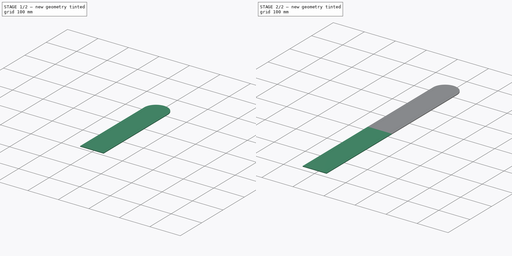
[diagram: build sequence overview — one tinted view per stage of 2, left to right]
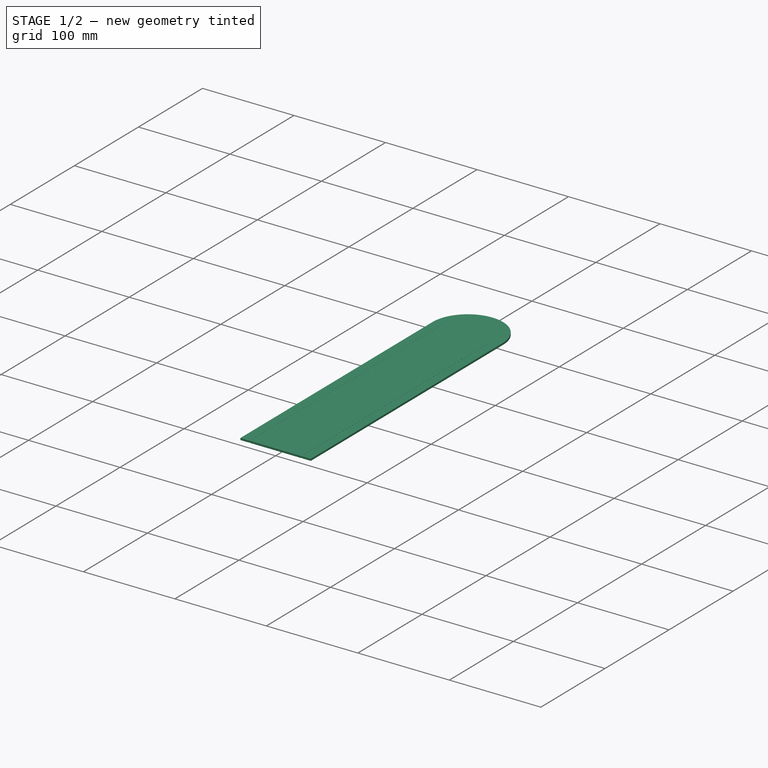
[diagram: stage 1 of 2 — iso view after this stage's code; geometry added in this stage tinted green]
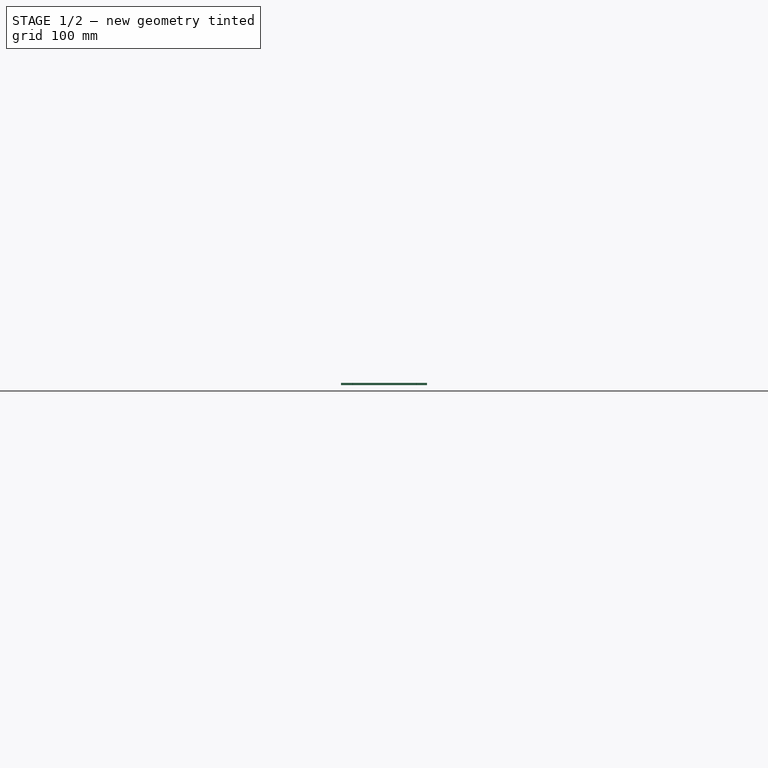
[diagram: stage 1 of 2 — front view after this stage's code; geometry added in this stage tinted green]
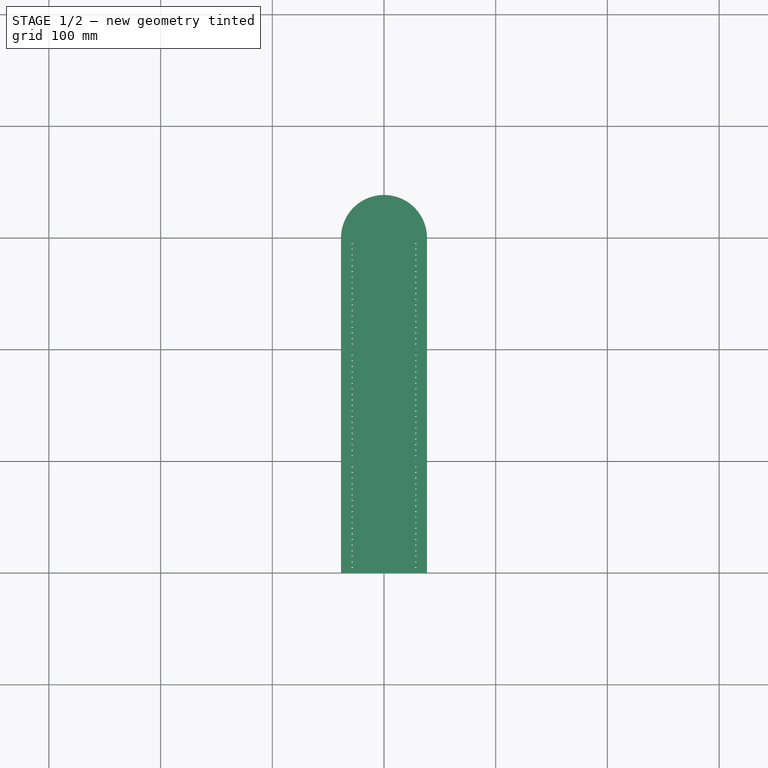
[diagram: stage 1 of 2 — top view after this stage's code; geometry added in this stage tinted green]
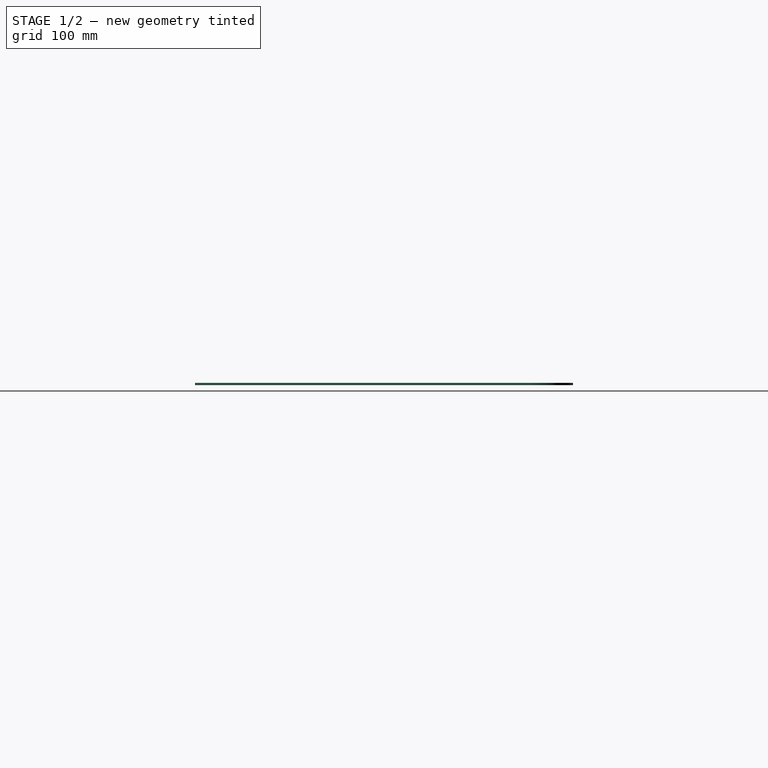
[diagram: stage 1 of 2 — right view after this stage's code; geometry added in this stage tinted green]
FCSTD DOCUMENT  (FreeCAD 0.18R16146 (Git))
Label: Pourtour_coupe
License: All rights reserved
LicenseURL: http://en.wikipedia.org/wiki/All_rights_reserved
objects: Sketcher::SketchObject×2, PartDesign::Pad×2, PartDesign::Mirrored×2, PartDesign::Body×2, Drawing::FeatureViewPart×2, Drawing::FeaturePage×1
note: 10 computed .brp shape members not serialized (recipe doc carries the construction recipe); baked Part::Feature solids carry a one-line shape summary decoded from their .brp

FEATURE [Sketcher::SketchObject] Sketch001
  MapMode = 5
  Support = -> [XY_Plane002]
  sketch-geometry (70):
    g0: LineSegment [constr] StartX=0 StartY=0 StartZ=0 EndX=38.5 EndY=0 EndZ=0
    g1: LineSegment [constr] StartX=38.5 StartY=600 StartZ=0 EndX=0 EndY=600 EndZ=0
    g2: ArcOfCircle CenterX=0 CenterY=600 CenterZ=0 NormalX=0 NormalY=0 NormalZ=1 AngleXU=0 Radius=38.5 StartAngle=0 EndAngle=1.5708
    g3: LineSegment [constr] StartX=28.5 StartY=600 StartZ=0 EndX=28.5 EndY=0 EndZ=0
    g4: Circle CenterX=28.5 CenterY=305 CenterZ=0 NormalX=0 NormalY=0 NormalZ=1 AngleXU=0 Radius=0.5
    g5: Circle CenterX=28.5 CenterY=310 CenterZ=0 NormalX=0 NormalY=0 NormalZ=1 AngleXU=0 Radius=0.5
    g6: Circle CenterX=28.5 CenterY=315 CenterZ=0 NormalX=0 NormalY=0 NormalZ=1 AngleXU=0 Radius=0.5
    g7: Circle CenterX=28.5 CenterY=320 CenterZ=0 NormalX=0 NormalY=0 NormalZ=1 AngleXU=0 Radius=0.5
    g8: Circle CenterX=28.5 CenterY=325 CenterZ=0 NormalX=0 NormalY=0 NormalZ=1 AngleXU=0 Radius=0.5
    g9: Circle CenterX=28.5 CenterY=330 CenterZ=0 NormalX=0 NormalY=0 NormalZ=1 AngleXU=0 Radius=0.5
    g10: Circle CenterX=28.5 CenterY=335 CenterZ=0 NormalX=0 NormalY=0 NormalZ=1 AngleXU=0 Radius=0.5
    g11: Circle CenterX=28.5 CenterY=340 CenterZ=0 NormalX=0 NormalY=0 NormalZ=1 AngleXU=0 Radius=0.5
    g12: Circle CenterX=28.5 CenterY=345 CenterZ=0 NormalX=0 NormalY=0 NormalZ=1 AngleXU=0 Radius=0.5
    g13: Circle CenterX=28.5 CenterY=350 CenterZ=0 NormalX=0 NormalY=0 NormalZ=1 AngleXU=0 Radius=0.5
    g14: Circle CenterX=28.5 CenterY=355 CenterZ=0 NormalX=0 NormalY=0 NormalZ=1 AngleXU=0 Radius=0.5
    g15: Circle CenterX=28.5 CenterY=360 CenterZ=0 NormalX=0 NormalY=0 NormalZ=1 AngleXU=0 Radius=0.5
    g16: Circle CenterX=28.5 CenterY=365 CenterZ=0 NormalX=0 NormalY=0 NormalZ=1 AngleXU=0 Radius=0.5
    g17: Circle CenterX=28.5 CenterY=370 CenterZ=0 NormalX=0 NormalY=0 NormalZ=1 AngleXU=0 Radius=0.5
    g18: Circle CenterX=28.5 CenterY=375 CenterZ=0 NormalX=0 NormalY=0 NormalZ=1 AngleXU=0 Radius=0.5
    g19: Circle CenterX=28.5 CenterY=380 CenterZ=0 NormalX=0 NormalY=0 NormalZ=1 AngleXU=0 Radius=0.5
    g20: Circle CenterX=28.5 CenterY=385 CenterZ=0 NormalX=0 NormalY=0 NormalZ=1 AngleXU=0 Radius=0.5
    g21: Circle CenterX=28.5 CenterY=390 CenterZ=0 NormalX=0 NormalY=0 NormalZ=1 AngleXU=0 Radius=0.5
    g22: Circle CenterX=28.5 CenterY=395 CenterZ=0 NormalX=0 NormalY=0 NormalZ=1 AngleXU=0 Radius=0.5
    g23: Circle CenterX=28.5 CenterY=400 CenterZ=0 NormalX=0 NormalY=0 NormalZ=1 AngleXU=0 Radius=0.5
    g24: Circle CenterX=28.5 CenterY=405 CenterZ=0 NormalX=0 NormalY=0 NormalZ=1 AngleXU=0 Radius=0.5
    g25: Circle CenterX=28.5 CenterY=410 CenterZ=0 NormalX=0 NormalY=0 NormalZ=1 AngleXU=0 Radius=0.5
    g26: Circle CenterX=28.5 CenterY=415 CenterZ=0 NormalX=0 NormalY=0 NormalZ=1 AngleXU=0 Radius=0.5
    g27: Circle CenterX=28.5 CenterY=420 CenterZ=0 NormalX=0 NormalY=0 NormalZ=1 AngleXU=0 Radius=0.5
    g28: Circle CenterX=28.5 CenterY=425 CenterZ=0 NormalX=0 NormalY=0 NormalZ=1 AngleXU=0 Radius=0.5
    g29: Circle CenterX=28.5 CenterY=430 CenterZ=0 NormalX=0 NormalY=0 NormalZ=1 AngleXU=0 Radius=0.5
    g30: Circle CenterX=28.5 CenterY=435 CenterZ=0 NormalX=0 NormalY=0 NormalZ=1 AngleXU=0 Radius=0.5
    g31: Circle CenterX=28.5 CenterY=440 CenterZ=0 NormalX=0 NormalY=0 NormalZ=1 AngleXU=0 Radius=0.5
    g32: Circle CenterX=28.5 CenterY=445 CenterZ=0 NormalX=0 NormalY=0 NormalZ=1 AngleXU=0 Radius=0.5
    g33: Circle CenterX=28.5 CenterY=450 CenterZ=0 NormalX=0 NormalY=0 NormalZ=1 AngleXU=0 Radius=0.5
    g34: Circle CenterX=28.5 CenterY=455 CenterZ=0 NormalX=0 NormalY=0 NormalZ=1 AngleXU=0 Radius=0.5
    g35: Circle CenterX=28.5 CenterY=460 CenterZ=0 NormalX=0 NormalY=0 NormalZ=1 AngleXU=0 Radius=0.5
    g36: Circle CenterX=28.5 CenterY=465 CenterZ=0 NormalX=0 NormalY=0 NormalZ=1 AngleXU=0 Radius=0.5
    g37: Circle CenterX=28.5 CenterY=470 CenterZ=0 NormalX=0 NormalY=0 NormalZ=1 AngleXU=0 Radius=0.5
    g38: Circle CenterX=28.5 CenterY=475 CenterZ=0 NormalX=0 NormalY=0 NormalZ=1 AngleXU=0 Radius=0.5
    g39: Circle CenterX=28.5 CenterY=480 CenterZ=0 NormalX=0 NormalY=0 NormalZ=1 AngleXU=0 Radius=0.5
    g40: Circle CenterX=28.5 CenterY=485 CenterZ=0 NormalX=0 NormalY=0 NormalZ=1 AngleXU=0 Radius=0.5
    g41: Circle CenterX=28.5 CenterY=490 CenterZ=0 NormalX=0 NormalY=0 NormalZ=1 AngleXU=0 Radius=0.5
    g42: Circle CenterX=28.5 CenterY=495 CenterZ=0 NormalX=0 NormalY=0 NormalZ=1 AngleXU=0 Radius=0.5
    g43: Circle CenterX=28.5 CenterY=500 CenterZ=0 NormalX=0 NormalY=0 NormalZ=1 AngleXU=0 Radius=0.5
    g44: Circle CenterX=28.5 CenterY=505 CenterZ=0 NormalX=0 NormalY=0 NormalZ=1 AngleXU=0 Radius=0.5
    g45: Circle CenterX=28.5 CenterY=510 CenterZ=0 NormalX=0 NormalY=0 NormalZ=1 AngleXU=0 Radius=0.5
    g46: Circle CenterX=28.5 CenterY=515 CenterZ=0 NormalX=0 NormalY=0 NormalZ=1 AngleXU=0 Radius=0.5
    g47: Circle CenterX=28.5 CenterY=520 CenterZ=0 NormalX=0 NormalY=0 NormalZ=1 AngleXU=0 Radius=0.5
    g48: Circle CenterX=28.5 CenterY=525 CenterZ=0 NormalX=0 NormalY=0 NormalZ=1 AngleXU=0 Radius=0.5
    g49: Circle CenterX=28.5 CenterY=530 CenterZ=0 NormalX=0 NormalY=0 NormalZ=1 AngleXU=0 Radius=0.5
    g50: Circle CenterX=28.5 CenterY=535 CenterZ=0 NormalX=0 NormalY=0 NormalZ=1 AngleXU=0 Radius=0.5
    g51: Circle CenterX=28.5 CenterY=540 CenterZ=0 NormalX=0 NormalY=0 NormalZ=1 AngleXU=0 Radius=0.5
    g52: Circle CenterX=28.5 CenterY=545 CenterZ=0 NormalX=0 NormalY=0 NormalZ=1 AngleXU=0 Radius=0.5
    g53: Circle CenterX=28.5 CenterY=550 CenterZ=0 NormalX=0 NormalY=0 NormalZ=1 AngleXU=0 Radius=0.5
    g54: Circle CenterX=28.5 CenterY=555 CenterZ=0 NormalX=0 NormalY=0 NormalZ=1 AngleXU=0 Radius=0.5
    g55: Circle CenterX=28.5 CenterY=560 CenterZ=0 NormalX=0 NormalY=0 NormalZ=1 AngleXU=0 Radius=0.5
    g56: Circle CenterX=28.5 CenterY=565 CenterZ=0 NormalX=0 NormalY=0 NormalZ=1 AngleXU=0 Radius=0.5
    g57: Circle CenterX=28.5 CenterY=570 CenterZ=0 NormalX=0 NormalY=0 NormalZ=1 AngleXU=0 Radius=0.5
    g58: Circle CenterX=28.5 CenterY=575 CenterZ=0 NormalX=0 NormalY=0 NormalZ=1 AngleXU=0 Radius=0.5
    g59: Circle CenterX=28.5 CenterY=580 CenterZ=0 NormalX=0 NormalY=0 NormalZ=1 AngleXU=0 Radius=0.5
    g60: Circle CenterX=28.5 CenterY=585 CenterZ=0 NormalX=0 NormalY=0 NormalZ=1 AngleXU=0 Radius=0.5
    g61: Circle CenterX=28.5 CenterY=590 CenterZ=0 NormalX=0 NormalY=0 NormalZ=1 AngleXU=0 Radius=0.5
    g62: Circle CenterX=28.5 CenterY=595 CenterZ=0 NormalX=0 NormalY=0 NormalZ=1 AngleXU=0 Radius=0.5
    g63: Circle CenterX=28.5 CenterY=600 CenterZ=0 NormalX=0 NormalY=0 NormalZ=1 AngleXU=0 Radius=0.5
    g64: LineSegment [constr] StartX=2.4e-15 StartY=300 StartZ=0 EndX=38.5 EndY=300 EndZ=0
    g65: LineSegment StartX=38.5 StartY=300 StartZ=0 EndX=38.5 EndY=600 EndZ=0
    g66: LineSegment StartX=2.4e-15 StartY=300 StartZ=0 EndX=2.4e-15 EndY=638.5 EndZ=0
    g67: ArcOfCircle CenterX=28.5 CenterY=300 CenterZ=0 NormalX=0 NormalY=0 NormalZ=1 AngleXU=0 Radius=0.5 StartAngle=1.77e-14 EndAngle=3.14159
    g68: LineSegment StartX=2.4e-15 StartY=300 StartZ=0 EndX=28 EndY=300 EndZ=0
    g69: LineSegment StartX=29 StartY=300 StartZ=0 EndX=38.5 EndY=300 EndZ=0
  constraints (212):
    c: Horizontal(g0)
    c: Coincident(g0,g-1)
    c: DistanceX(g0,g0) = 38.5
    c: PointOnObject(g1,g-2)
    c: Horizontal(g1)
    c: Coincident(g2,g1)
    c: PointOnObject(g2,g-2)
    c: Vertical(g3)
    c: PointOnObject(g3,g1)
    c: PointOnObject(g3,g0)
    c: Distance(g5,g4) = 5
    c: Equal(g4,g6) = 0.5
    c: Equal(g5,g7) = 0.5
    c: Distance(g7,g6) = 5
    c: Distance(g5,g6) = 5
    c: PointOnObject(g7,g3)
    c: PointOnObject(g6,g3)
    c: PointOnObject(g5,g3)
    c: PointOnObject(g4,g3)
    c: Distance(g9,g8) = 5
    c: Equal(g8,g10) = 0.5
    c: Equal(g9,g11) = 0.5
    c: Distance(g11,g10) = 5
    c: Distance(g9,g10) = 5
    c: Equal(g8,g12) = 0.5
    c: Equal(g9,g13) = 0.5
    c: Distance(g13,g12) = 5
    c: Equal(g12,g14) = 0.5
    c: Equal(g13,g15) = 0.5
    c: Distance(g15,g14) = 5
    c: Distance(g13,g14) = 5
    c: Distance(g12,g11) = 5
    c: Equal(g8,g16) = 0.5
    c: Equal(g9,g17) = 0.5
    c: Distance(g17,g16) = 5
    c: Equal(g16,g18) = 0.5
    c: Equal(g17,g19) = 0.5
    c: Distance(g19,g18) = 5
    c: Distance(g17,g18) = 5
    c: Equal(g16,g20) = 0.5
    c: Equal(g17,g21) = 0.5
    c: Distance(g21,g20) = 5
    c: Equal(g20,g22) = 0.5
    c: Equal(g21,g23) = 0.5
    c: Distance(g23,g22) = 5
    c: Distance(g21,g22) = 5
    c: Distance(g20,g19) = 5
    c: Distance(g16,g15) = 5
    c: Equal(g8,g24) = 0.5
    c: Equal(g9,g25) = 0.5
    c: Distance(g25,g24) = 5
    c: Equal(g24,g26) = 0.5
    c: Equal(g25,g27) = 0.5
    c: Distance(g27,g26) = 5
    c: Distance(g25,g26) = 5
    c: Equal(g24,g28) = 0.5
    c: Equal(g25,g29) = 0.5
    c: Distance(g29,g28) = 5
    c: Equal(g28,g30) = 0.5
    c: Equal(g29,g31) = 0.5
    c: Distance(g31,g30) = 5
    c: Distance(g29,g30) = 5
    c: Distance(g28,g27) = 5
    c: Equal(g24,g32) = 0.5
    c: Equal(g25,g33) = 0.5
    c: Distance(g33,g32) = 5
    c: Equal(g32,g34) = 0.5
    c: Equal(g33,g35) = 0.5
    c: Distance(g35,g34) = 5
    c: Distance(g33,g34) = 5
    c: Equal(g32,g36) = 0.5
    c: Equal(g33,g37) = 0.5
    c: Distance(g37,g36) = 5
    c: Equal(g36,g38) = 0.5
    c: Equal(g37,g39) = 0.5
    c: Distance(g39,g38) = 5
    c: Distance(g37,g38) = 5
    c: Distance(g36,g35) = 5
    c: Distance(g32,g31) = 5
    c: Distance(g24,g23) = 5
    c: Equal(g8,g40) = 0.5
    c: Equal(g9,g41) = 0.5
    c: Distance(g41,g40) = 5
    c: Equal(g40,g42) = 0.5
    c: Equal(g41,g43) = 0.5
    c: Distance(g43,g42) = 5
    c: Distance(g41,g42) = 5
    c: Equal(g40,g44) = 0.5
    c: Equal(g41,g45) = 0.5
    c: Distance(g45,g44) = 5
    c: Equal(g44,g46) = 0.5
    c: Equal(g45,g47) = 0.5
    c: Distance(g47,g46) = 5
    c: Distance(g45,g46) = 5
    c: Distance(g44,g43) = 5
    c: Equal(g40,g48) = 0.5
    c: Equal(g41,g49) = 0.5
    c: Distance(g49,g48) = 5
    c: Equal(g48,g50) = 0.5
    c: Equal(g49,g51) = 0.5
    c: Distance(g51,g50) = 5
    c: Distance(g49,g50) = 5
    c: Equal(g48,g52) = 0.5
    c: Equal(g49,g53) = 0.5
    c: Distance(g53,g52) = 5
    c: Equal(g52,g54) = 0.5
    c: Equal(g53,g55) = 0.5
    c: Distance(g55,g54) = 5
    c: Distance(g53,g54) = 5
    c: Distance(g52,g51) = 5
    c: Distance(g48,g47) = 5
    c: Equal(g40,g56) = 0.5
    c: Distance(g56,g55) = 5
    c: Distance(g40,g39) = 5
    c: PointOnObject(g56,g3)
    c: PointOnObject(g55,g3)
    c: PointOnObject(g54,g3)
    c: PointOnObject(g53,g3)
    c: PointOnObject(g52,g3)
    c: PointOnObject(g51,g3)
    c: PointOnObject(g50,g3)
    c: PointOnObject(g49,g3)
    c: PointOnObject(g48,g3)
    c: PointOnObject(g47,g3)
    c: PointOnObject(g46,g3)
    c: PointOnObject(g45,g3)
    c: PointOnObject(g44,g3)
    c: PointOnObject(g43,g3)
    c: PointOnObject(g42,g3)
    c: PointOnObject(g41,g3)
    c: PointOnObject(g40,g3)
    c: PointOnObject(g39,g3)
    c: PointOnObject(g38,g3)
    c: PointOnObject(g37,g3)
    c: PointOnObject(g36,g3)
    c: PointOnObject(g35,g3)
    c: PointOnObject(g34,g3)
    c: PointOnObject(g33,g3)
    c: PointOnObject(g32,g3)
    c: PointOnObject(g31,g3)
    c: PointOnObject(g30,g3)
    c: PointOnObject(g29,g3)
    c: PointOnObject(g28,g3)
    c: PointOnObject(g27,g3)
    c: PointOnObject(g26,g3)
    c: PointOnObject(g25,g3)
    c: PointOnObject(g24,g3)
    c: PointOnObject(g23,g3)
    c: PointOnObject(g22,g3)
    c: PointOnObject(g21,g3)
    c: PointOnObject(g20,g3)
    c: PointOnObject(g19,g3)
    c: PointOnObject(g18,g3)
    c: PointOnObject(g17,g3)
    c: PointOnObject(g16,g3)
    c: PointOnObject(g15,g3)
    c: PointOnObject(g14,g3)
    c: PointOnObject(g13,g3)
    c: PointOnObject(g12,g3)
    c: PointOnObject(g11,g3)
    c: PointOnObject(g10,g3)
    c: PointOnObject(g9,g3)
    c: PointOnObject(g8,g3)
    c: Distance(g8,g7) = 5
    c: Distance(g58,g57) = 5
    c: Distance(g60,g59) = 5
    c: Distance(g62,g61) = 5
    c: Distance(g60,g61) = 5
    c: Distance(g59,g58) = 5
    c: Distance(g63,g62) = 5
    c: PointOnObject(g63,g3)
    c: PointOnObject(g62,g3)
    c: PointOnObject(g61,g3)
    c: PointOnObject(g60,g3)
    c: PointOnObject(g59,g3)
    c: PointOnObject(g58,g3)
    c: PointOnObject(g57,g3)
    c: Equal(g56,g57)
    c: Equal(g57,g58)
    c: Distance(g56,g57) = 5
    c: Equal(g59,g58)
    c: Equal(g59,g60)
    c: Equal(g60,g61)
    c: Equal(g61,g62)
    c: Equal(g62,g63)
    c: Distance(g64,g0) = 300
    c: Distance(g4,g64) = 5
    c: Radius(g4) = 0.5
    c: Coincident(g65,g64)
    c: Coincident(g65,g2)
    c: Vertical(g65)
    c: Coincident(g66,g64)
    c: Coincident(g66,g2)
    c: Vertical(g66)
    c: Distance(g64,g1) = 300
    c: PointOnObject(g1,g65)
    c: PointOnObject(g0,g65)
    c: PointOnObject(g2,g1)
    c: Distance(g64,g3) = 10
    c: Equal(g5,g4)
    c: Equal(g11,g10)
    c: Equal(g8,g7)
    c: PointOnObject(g67,g64)
    c: PointOnObject(g67,g3)
    c: PointOnObject(g67,g64)
    c: PointOnObject(g67,g64)
    c: Equal(g67,g4)
    c: Coincident(g68,g66)
    c: Coincident(g68,g67)
    c: Horizontal(g68)
    c: Coincident(g69,g67)
    c: Coincident(g69,g65)
FEATURE [PartDesign::Pad] Pad001
  Length = 2
  Length2 = 100
  Profile = -> Sketch001
  Type = 0
FEATURE [PartDesign::Body] Body
  Group = -> [Sketch,Pad,Mirrored]
  Origin = -> Origin
  Tip = -> Mirrored
FEATURE [PartDesign::Mirrored] Mirrored001
  BaseFeature = -> Pad001
  MirrorPlane = -> Sketch001 [V_Axis]
  Originals = -> [Pad001]
FEATURE [PartDesign::Body] Body001
  Group = -> [Sketch001,Pad001,Mirrored001]
  Origin = -> Origin001
  Tip = -> Mirrored001
FEATURE [Drawing::FeatureViewPart] Ortho  label="Ortho_0_0"
  Direction = (0,0,1)
  HiddenWidth = 0.15
  LineWidth = 0.35
  Rotation = 90
  ShowHiddenLines = false
  ShowSmoothLines = false
  Source = -> Mirrored
  Tolerance = 0.05
  ViewResult = <blob: 5443 chars omitted>
  Visible = false
  X = 65
  Y = 65
FEATURE [Drawing::FeatureViewPart] Ortho001  label="Ortho_0_001"
  Direction = (0,0,1)
  HiddenWidth = 0.15
  LineWidth = 0.35
  Rotation = 90
  ShowHiddenLines = false
  ShowSmoothLines = false
  Source = -> Mirrored001
  Tolerance = 0.05
  ViewResult = <blob: 5666 chars omitted>
  Visible = false
  X = -254.25
  Y = 165
FEATURE [Drawing::FeaturePage] Page
  EditableTexts = Dubois Jérôme | Pourtour coupé | FreeCAD DRAWING | A3 | 1/1 | 1 | PN | DN | 29/12/2021 | REV A
  Group = -> [Ortho,Ortho001]
  Template = <path>
note: 1 file-system path scrubbed to <path> (originals preserved in the JSON sidecar)
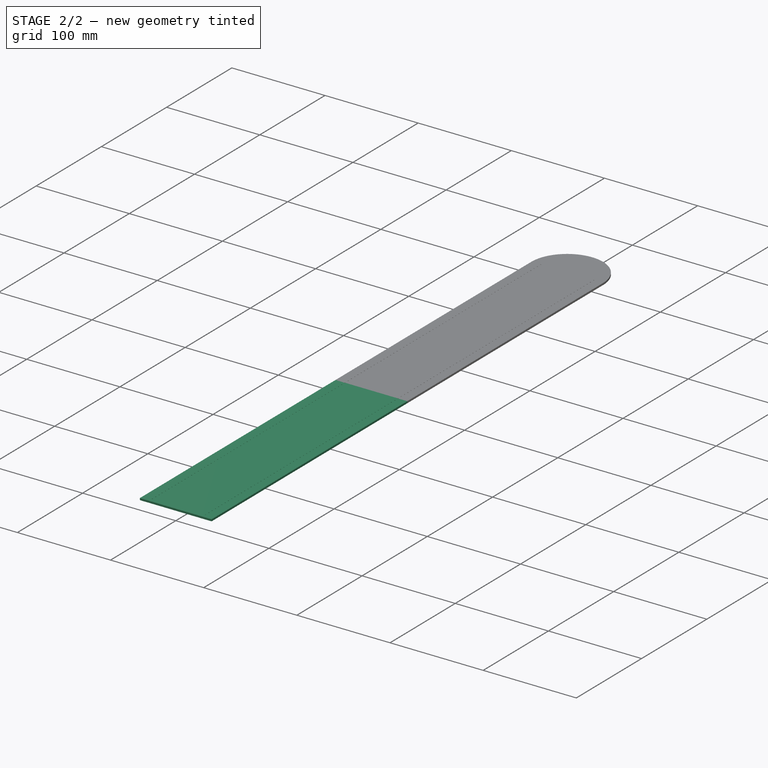
[diagram: stage 2 of 2 — iso view after this stage's code; geometry added in this stage tinted green]
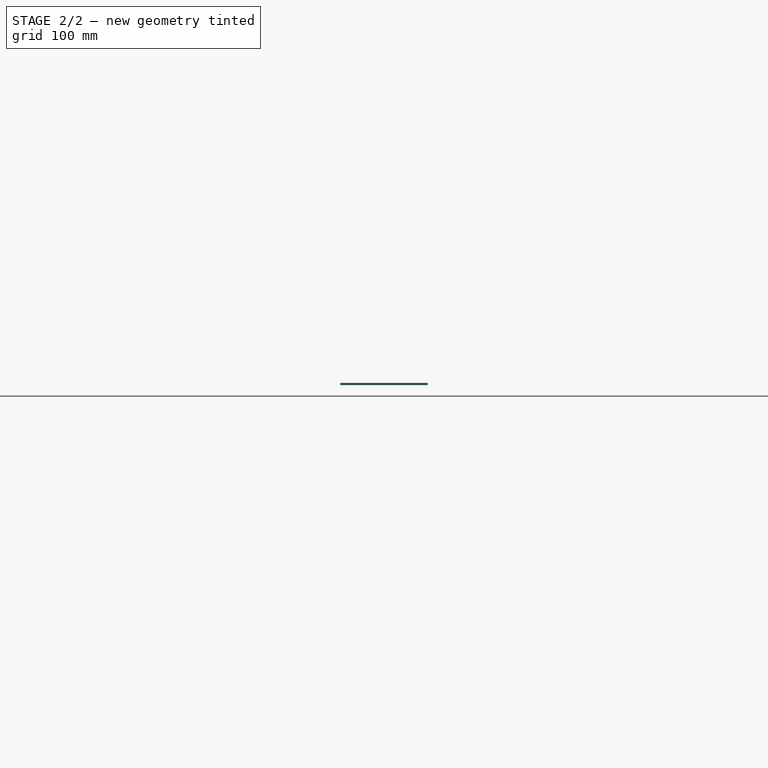
[diagram: stage 2 of 2 — front view after this stage's code; geometry added in this stage tinted green]
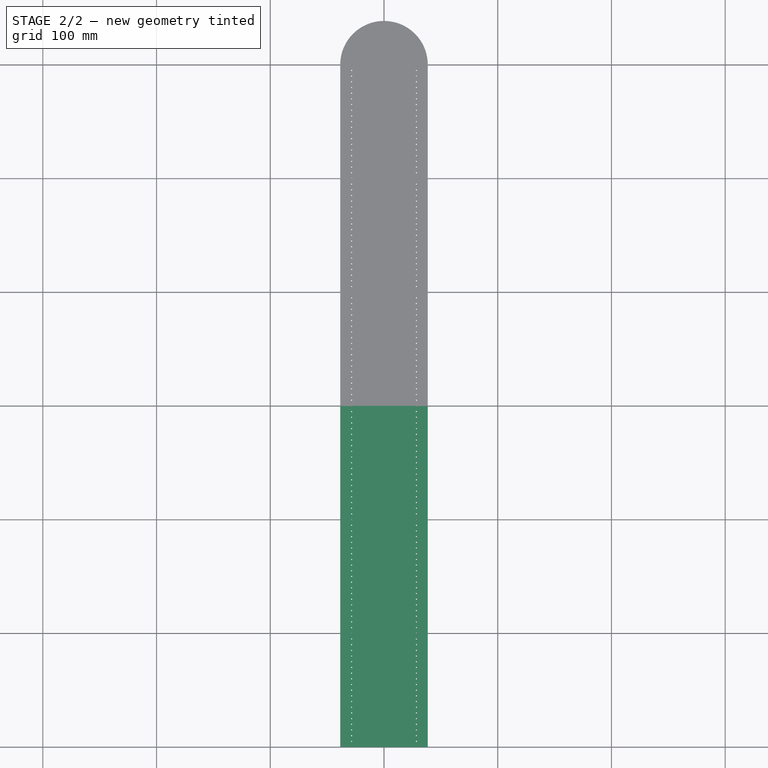
[diagram: stage 2 of 2 — top view after this stage's code; geometry added in this stage tinted green]
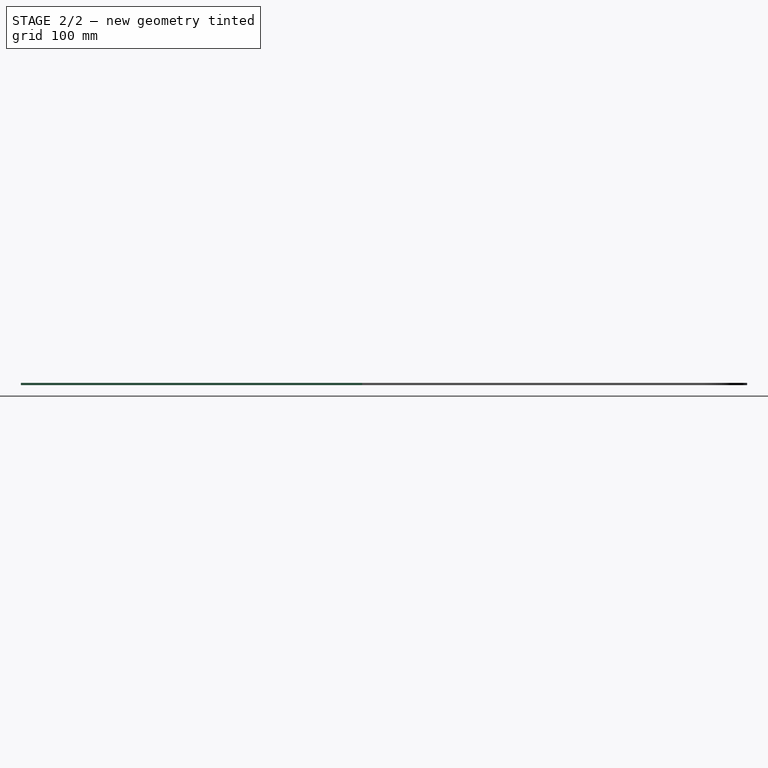
[diagram: stage 2 of 2 — right view after this stage's code; geometry added in this stage tinted green]
FEATURE [Sketcher::SketchObject] Sketch
  MapMode = 5
  Support = -> [XY_Plane]
  sketch-geometry (67):
    g0: LineSegment StartX=0 StartY=0 StartZ=0 EndX=38.5 EndY=0 EndZ=0
    g1: LineSegment StartX=38.5 StartY=0 StartZ=0 EndX=38.5 EndY=300 EndZ=0
    g2: LineSegment [constr] StartX=28.5 StartY=300 StartZ=0 EndX=28.5 EndY=0 EndZ=0
    g3: Circle CenterX=28.5 CenterY=5 CenterZ=0 NormalX=0 NormalY=0 NormalZ=1 AngleXU=0 Radius=0.5
    g4: Circle CenterX=28.5 CenterY=10 CenterZ=0 NormalX=0 NormalY=0 NormalZ=1 AngleXU=0 Radius=0.5
    g5: Circle CenterX=28.5 CenterY=15 CenterZ=0 NormalX=0 NormalY=0 NormalZ=1 AngleXU=0 Radius=0.5
    g6: Circle CenterX=28.5 CenterY=20 CenterZ=0 NormalX=0 NormalY=0 NormalZ=1 AngleXU=0 Radius=0.5
    g7: Circle CenterX=28.5 CenterY=25 CenterZ=0 NormalX=0 NormalY=0 NormalZ=1 AngleXU=0 Radius=0.5
    g8: Circle CenterX=28.5 CenterY=30 CenterZ=0 NormalX=0 NormalY=0 NormalZ=1 AngleXU=0 Radius=0.5
    g9: Circle CenterX=28.5 CenterY=35 CenterZ=0 NormalX=0 NormalY=0 NormalZ=1 AngleXU=0 Radius=0.5
    g10: Circle CenterX=28.5 CenterY=40 CenterZ=0 NormalX=0 NormalY=0 NormalZ=1 AngleXU=0 Radius=0.5
    g11: Circle CenterX=28.5 CenterY=45 CenterZ=0 NormalX=0 NormalY=0 NormalZ=1 AngleXU=0 Radius=0.5
    g12: Circle CenterX=28.5 CenterY=50 CenterZ=0 NormalX=0 NormalY=0 NormalZ=1 AngleXU=0 Radius=0.5
    g13: Circle CenterX=28.5 CenterY=55 CenterZ=0 NormalX=0 NormalY=0 NormalZ=1 AngleXU=0 Radius=0.5
    g14: Circle CenterX=28.5 CenterY=60 CenterZ=0 NormalX=0 NormalY=0 NormalZ=1 AngleXU=0 Radius=0.5
    g15: Circle CenterX=28.5 CenterY=65 CenterZ=0 NormalX=0 NormalY=0 NormalZ=1 AngleXU=0 Radius=0.5
    g16: Circle CenterX=28.5 CenterY=70 CenterZ=0 NormalX=0 NormalY=0 NormalZ=1 AngleXU=0 Radius=0.5
    g17: Circle CenterX=28.5 CenterY=75 CenterZ=0 NormalX=0 NormalY=0 NormalZ=1 AngleXU=0 Radius=0.5
    g18: Circle CenterX=28.5 CenterY=80 CenterZ=0 NormalX=0 NormalY=0 NormalZ=1 AngleXU=0 Radius=0.5
    g19: Circle CenterX=28.5 CenterY=85 CenterZ=0 NormalX=0 NormalY=0 NormalZ=1 AngleXU=0 Radius=0.5
    g20: Circle CenterX=28.5 CenterY=90 CenterZ=0 NormalX=0 NormalY=0 NormalZ=1 AngleXU=0 Radius=0.5
    g21: Circle CenterX=28.5 CenterY=95 CenterZ=0 NormalX=0 NormalY=0 NormalZ=1 AngleXU=0 Radius=0.5
    g22: Circle CenterX=28.5 CenterY=100 CenterZ=0 NormalX=0 NormalY=0 NormalZ=1 AngleXU=0 Radius=0.5
    g23: Circle CenterX=28.5 CenterY=105 CenterZ=0 NormalX=0 NormalY=0 NormalZ=1 AngleXU=0 Radius=0.5
    g24: Circle CenterX=28.5 CenterY=110 CenterZ=0 NormalX=0 NormalY=0 NormalZ=1 AngleXU=0 Radius=0.5
    g25: Circle CenterX=28.5 CenterY=115 CenterZ=0 NormalX=0 NormalY=0 NormalZ=1 AngleXU=0 Radius=0.5
    g26: Circle CenterX=28.5 CenterY=120 CenterZ=0 NormalX=0 NormalY=0 NormalZ=1 AngleXU=0 Radius=0.5
    g27: Circle CenterX=28.5 CenterY=125 CenterZ=0 NormalX=0 NormalY=0 NormalZ=1 AngleXU=0 Radius=0.5
    g28: Circle CenterX=28.5 CenterY=130 CenterZ=0 NormalX=0 NormalY=0 NormalZ=1 AngleXU=0 Radius=0.5
    g29: Circle CenterX=28.5 CenterY=135 CenterZ=0 NormalX=0 NormalY=0 NormalZ=1 AngleXU=0 Radius=0.5
    g30: Circle CenterX=28.5 CenterY=140 CenterZ=0 NormalX=0 NormalY=0 NormalZ=1 AngleXU=0 Radius=0.5
    g31: Circle CenterX=28.5 CenterY=145 CenterZ=0 NormalX=0 NormalY=0 NormalZ=1 AngleXU=0 Radius=0.5
    g32: Circle CenterX=28.5 CenterY=150 CenterZ=0 NormalX=0 NormalY=0 NormalZ=1 AngleXU=0 Radius=0.5
    g33: Circle CenterX=28.5 CenterY=155 CenterZ=0 NormalX=0 NormalY=0 NormalZ=1 AngleXU=0 Radius=0.5
    g34: Circle CenterX=28.5 CenterY=160 CenterZ=0 NormalX=0 NormalY=0 NormalZ=1 AngleXU=0 Radius=0.5
    g35: Circle CenterX=28.5 CenterY=165 CenterZ=0 NormalX=0 NormalY=0 NormalZ=1 AngleXU=0 Radius=0.5
    g36: Circle CenterX=28.5 CenterY=170 CenterZ=0 NormalX=0 NormalY=0 NormalZ=1 AngleXU=0 Radius=0.5
    g37: Circle CenterX=28.5 CenterY=175 CenterZ=0 NormalX=0 NormalY=0 NormalZ=1 AngleXU=0 Radius=0.5
    g38: Circle CenterX=28.5 CenterY=180 CenterZ=0 NormalX=0 NormalY=0 NormalZ=1 AngleXU=0 Radius=0.5
    g39: Circle CenterX=28.5 CenterY=185 CenterZ=0 NormalX=0 NormalY=0 NormalZ=1 AngleXU=0 Radius=0.5
    g40: Circle CenterX=28.5 CenterY=190 CenterZ=0 NormalX=0 NormalY=0 NormalZ=1 AngleXU=0 Radius=0.5
    g41: Circle CenterX=28.5 CenterY=195 CenterZ=0 NormalX=0 NormalY=0 NormalZ=1 AngleXU=0 Radius=0.5
    g42: Circle CenterX=28.5 CenterY=200 CenterZ=0 NormalX=0 NormalY=0 NormalZ=1 AngleXU=0 Radius=0.5
    g43: Circle CenterX=28.5 CenterY=205 CenterZ=0 NormalX=0 NormalY=0 NormalZ=1 AngleXU=0 Radius=0.5
    g44: Circle CenterX=28.5 CenterY=210 CenterZ=0 NormalX=0 NormalY=0 NormalZ=1 AngleXU=0 Radius=0.5
    g45: Circle CenterX=28.5 CenterY=215 CenterZ=0 NormalX=0 NormalY=0 NormalZ=1 AngleXU=0 Radius=0.5
    g46: Circle CenterX=28.5 CenterY=220 CenterZ=0 NormalX=0 NormalY=0 NormalZ=1 AngleXU=0 Radius=0.5
    g47: Circle CenterX=28.5 CenterY=225 CenterZ=0 NormalX=0 NormalY=0 NormalZ=1 AngleXU=0 Radius=0.5
    g48: Circle CenterX=28.5 CenterY=230 CenterZ=0 NormalX=0 NormalY=0 NormalZ=1 AngleXU=0 Radius=0.5
    g49: Circle CenterX=28.5 CenterY=235 CenterZ=0 NormalX=0 NormalY=0 NormalZ=1 AngleXU=0 Radius=0.5
    g50: Circle CenterX=28.5 CenterY=240 CenterZ=0 NormalX=0 NormalY=0 NormalZ=1 AngleXU=0 Radius=0.5
    g51: Circle CenterX=28.5 CenterY=245 CenterZ=0 NormalX=0 NormalY=0 NormalZ=1 AngleXU=0 Radius=0.5
    g52: Circle CenterX=28.5 CenterY=250 CenterZ=0 NormalX=0 NormalY=0 NormalZ=1 AngleXU=0 Radius=0.5
    g53: Circle CenterX=28.5 CenterY=255 CenterZ=0 NormalX=0 NormalY=0 NormalZ=1 AngleXU=0 Radius=0.5
    g54: Circle CenterX=28.5 CenterY=260 CenterZ=0 NormalX=0 NormalY=0 NormalZ=1 AngleXU=0 Radius=0.5
    g55: Circle CenterX=28.5 CenterY=265 CenterZ=0 NormalX=0 NormalY=0 NormalZ=1 AngleXU=0 Radius=0.5
    g56: Circle CenterX=28.5 CenterY=270 CenterZ=0 NormalX=0 NormalY=0 NormalZ=1 AngleXU=0 Radius=0.5
    g57: Circle CenterX=28.5 CenterY=275 CenterZ=0 NormalX=0 NormalY=0 NormalZ=1 AngleXU=0 Radius=0.5
    g58: Circle CenterX=28.5 CenterY=280 CenterZ=0 NormalX=0 NormalY=0 NormalZ=1 AngleXU=0 Radius=0.5
    g59: Circle CenterX=28.5 CenterY=285 CenterZ=0 NormalX=0 NormalY=0 NormalZ=1 AngleXU=0 Radius=0.5
    g60: Circle CenterX=28.5 CenterY=290 CenterZ=0 NormalX=0 NormalY=0 NormalZ=1 AngleXU=0 Radius=0.5
    g61: LineSegment StartX=0 StartY=300 StartZ=0 EndX=0 EndY=0 EndZ=0
    g62: LineSegment [constr] StartX=0 StartY=300 StartZ=0 EndX=38.5 EndY=300 EndZ=0
    g63: Circle CenterX=28.5 CenterY=295 CenterZ=0 NormalX=0 NormalY=0 NormalZ=1 AngleXU=0 Radius=0.5
    g64: ArcOfCircle CenterX=28.5 CenterY=300 CenterZ=0 NormalX=0 NormalY=0 NormalZ=1 AngleXU=0 Radius=0.5 StartAngle=3.14159 EndAngle=6.28319
    g65: LineSegment StartX=29 StartY=300 StartZ=0 EndX=38.5 EndY=300 EndZ=0
    g66: LineSegment StartX=28 StartY=300 StartZ=0 EndX=0 EndY=300 EndZ=0
  constraints (203):
    c: Horizontal(g0)
    c: Coincident(g0,g-1)
    c: DistanceX(g0,g0) = 38.5
    c: Vertical(g1)
    c: Coincident(g1,g0)
    c: PointOnObject(g61,g-2)
    c: Vertical(g2)
    c: Distance(g2,g1) = 10
    c: PointOnObject(g2,g0)
    c: Distance(g4,g3) = 5
    c: PointOnObject(g4,g2)
    c: PointOnObject(g3,g2)
    c: Distance(g6,g5) = 5
    c: Equal(g5,g7) = 0.5
    c: Distance(g8,g7) = 5
    c: Distance(g6,g7) = 5
    c: PointOnObject(g8,g2)
    c: PointOnObject(g7,g2)
    c: PointOnObject(g6,g2)
    c: PointOnObject(g5,g2)
    c: Distance(g5,g4) = 5
    c: Distance(g10,g9) = 5
    c: Equal(g9,g11) = 0.5
    c: Equal(g10,g12) = 0.5
    c: Distance(g12,g11) = 5
    c: Distance(g10,g11) = 5
    c: Equal(g9,g13) = 0.5
    c: Equal(g10,g14) = 0.5
    c: Distance(g14,g13) = 5
    c: Equal(g13,g15) = 0.5
    c: Equal(g14,g16) = 0.5
    c: Distance(g16,g15) = 5
    c: Distance(g14,g15) = 5
    c: Distance(g13,g12) = 5
    c: PointOnObject(g16,g2)
    c: PointOnObject(g9,g2)
    c: PointOnObject(g10,g2)
    c: PointOnObject(g11,g2)
    c: PointOnObject(g12,g2)
    c: PointOnObject(g13,g2)
    c: PointOnObject(g14,g2)
    c: PointOnObject(g15,g2)
    c: Distance(g9,g8) = 5
    c: Distance(g18,g17) = 5
    c: Equal(g17,g19) = 0.5
    c: Equal(g18,g20) = 0.5
    c: Distance(g20,g19) = 5
    c: Distance(g18,g19) = 5
    c: Equal(g17,g21) = 0.5
    c: Equal(g18,g22) = 0.5
    c: Distance(g22,g21) = 5
    c: Equal(g21,g23) = 0.5
    c: Equal(g22,g24) = 0.5
    c: Distance(g24,g23) = 5
    c: Distance(g22,g23) = 5
    c: Distance(g21,g20) = 5
    c: Equal(g17,g25) = 0.5
    c: Equal(g18,g26) = 0.5
    c: Distance(g26,g25) = 5
    c: Equal(g25,g27) = 0.5
    c: Equal(g26,g28) = 0.5
    c: Distance(g28,g27) = 5
    c: Distance(g26,g27) = 5
    c: Equal(g25,g29) = 0.5
    c: Equal(g26,g30) = 0.5
    c: Distance(g30,g29) = 5
    c: Equal(g29,g31) = 0.5
    c: Equal(g30,g32) = 0.5
    c: Distance(g32,g31) = 5
    c: Distance(g30,g31) = 5
    c: Distance(g29,g28) = 5
    c: Distance(g25,g24) = 5
    c: PointOnObject(g32,g2)
    c: PointOnObject(g17,g2)
    c: PointOnObject(g18,g2)
    c: PointOnObject(g19,g2)
    c: PointOnObject(g20,g2)
    c: PointOnObject(g21,g2)
    c: PointOnObject(g22,g2)
    c: PointOnObject(g23,g2)
    c: PointOnObject(g24,g2)
    c: PointOnObject(g25,g2)
    c: PointOnObject(g26,g2)
    c: PointOnObject(g27,g2)
    c: PointOnObject(g28,g2)
    c: PointOnObject(g29,g2)
    c: PointOnObject(g30,g2)
    c: PointOnObject(g31,g2)
    c: Distance(g17,g16) = 5
    c: Distance(g34,g33) = 5
    c: Equal(g33,g35) = 0.5
    c: Equal(g34,g36) = 0.5
    c: Distance(g36,g35) = 5
    c: Distance(g34,g35) = 5
    c: Equal(g33,g37) = 0.5
    c: Equal(g34,g38) = 0.5
    c: Distance(g38,g37) = 5
    c: Equal(g37,g39) = 0.5
    c: Equal(g38,g40) = 0.5
    c: Distance(g40,g39) = 5
    c: Distance(g38,g39) = 5
    c: Distance(g37,g36) = 5
    c: Equal(g33,g41) = 0.5
    c: Equal(g34,g42) = 0.5
    c: Distance(g42,g41) = 5
    c: Equal(g41,g43) = 0.5
    c: Equal(g42,g44) = 0.5
    c: Distance(g44,g43) = 5
    c: Distance(g42,g43) = 5
    c: Equal(g41,g45) = 0.5
    c: Equal(g42,g46) = 0.5
    c: Distance(g46,g45) = 5
    c: Equal(g45,g47) = 0.5
    c: Equal(g46,g48) = 0.5
    c: Distance(g48,g47) = 5
    c: Distance(g46,g47) = 5
    c: Distance(g45,g44) = 5
    c: Distance(g41,g40) = 5
    c: Equal(g33,g49) = 0.5
    c: Equal(g34,g50) = 0.5
    c: Distance(g50,g49) = 5
    c: Equal(g49,g51) = 0.5
    c: Equal(g50,g52) = 0.5
    c: Distance(g52,g51) = 5
    c: Distance(g50,g51) = 5
    c: Equal(g49,g53) = 0.5
    c: Equal(g50,g54) = 0.5
    c: Distance(g54,g53) = 5
    c: Equal(g53,g55) = 0.5
    c: Equal(g54,g56) = 0.5
    c: Distance(g56,g55) = 5
    c: Distance(g54,g55) = 5
    c: Distance(g53,g52) = 5
    c: Equal(g49,g57) = 0.5
    c: Equal(g50,g58) = 0.5
    c: Distance(g58,g57) = 5
    c: Equal(g57,g59) = 0.5
    c: Equal(g58,g60) = 0.5
    c: Distance(g60,g59) = 5
    c: Distance(g58,g59) = 5
    c: Distance(g57,g56) = 5
    c: Distance(g49,g48) = 5
    c: PointOnObject(g33,g2)
    c: PointOnObject(g34,g2)
    c: PointOnObject(g60,g2)
    c: PointOnObject(g59,g2)
    c: PointOnObject(g58,g2)
    c: PointOnObject(g57,g2)
    c: PointOnObject(g56,g2)
    c: PointOnObject(g55,g2)
    c: PointOnObject(g54,g2)
    c: PointOnObject(g53,g2)
    c: PointOnObject(g52,g2)
    c: PointOnObject(g51,g2)
    c: PointOnObject(g50,g2)
    c: PointOnObject(g49,g2)
    c: PointOnObject(g48,g2)
    c: PointOnObject(g47,g2)
    c: PointOnObject(g46,g2)
    c: PointOnObject(g45,g2)
    c: PointOnObject(g44,g2)
    c: PointOnObject(g43,g2)
    c: PointOnObject(g42,g2)
    c: PointOnObject(g41,g2)
    c: PointOnObject(g40,g2)
    c: PointOnObject(g39,g2)
    c: PointOnObject(g38,g2)
    c: PointOnObject(g37,g2)
    c: PointOnObject(g36,g2)
    c: PointOnObject(g35,g2)
    c: Distance(g33,g32) = 5
    c: Coincident(g61,g0)
    c: Horizontal(g62)
    c: PointOnObject(g62,g1)
    c: PointOnObject(g62,g61)
    c: Distance(g62,g0) = 300
    c: PointOnObject(g2,g62)
    c: PointOnObject(g1,g62)
    c: PointOnObject(g61,g62)
    c: PointOnObject(g63,g2)
    c: Equal(g60,g63)
    c: Distance(g60,g63) = 5
    c: Distance(g3,g0) = 5
    c: Radius(g3) = 0.5
    c: Equal(g3,g4)
    c: Equal(g4,g5)
    c: Equal(g5,g6)
    c: Equal(g7,g8)
    c: Equal(g10,g11)
    c: Equal(g9,g8)
    c: Equal(g18,g19)
    c: Equal(g17,g16)
    c: Equal(g36,g35)
    c: Equal(g33,g32)
    c: PointOnObject(g64,g62)
    c: PointOnObject(g64,g2)
    c: PointOnObject(g64,g62)
    c: PointOnObject(g64,g62)
    c: Equal(g64,g63)
    c: Coincident(g65,g64)
    c: Coincident(g65,g1)
    c: Coincident(g66,g64)
    c: Coincident(g66,g61)
FEATURE [PartDesign::Pad] Pad
  Length = 2
  Length2 = 100
  Profile = -> Sketch
  Type = 0
FEATURE [PartDesign::Mirrored] Mirrored
  BaseFeature = -> Pad
  MirrorPlane = -> Sketch [V_Axis]
  Originals = -> [Pad]
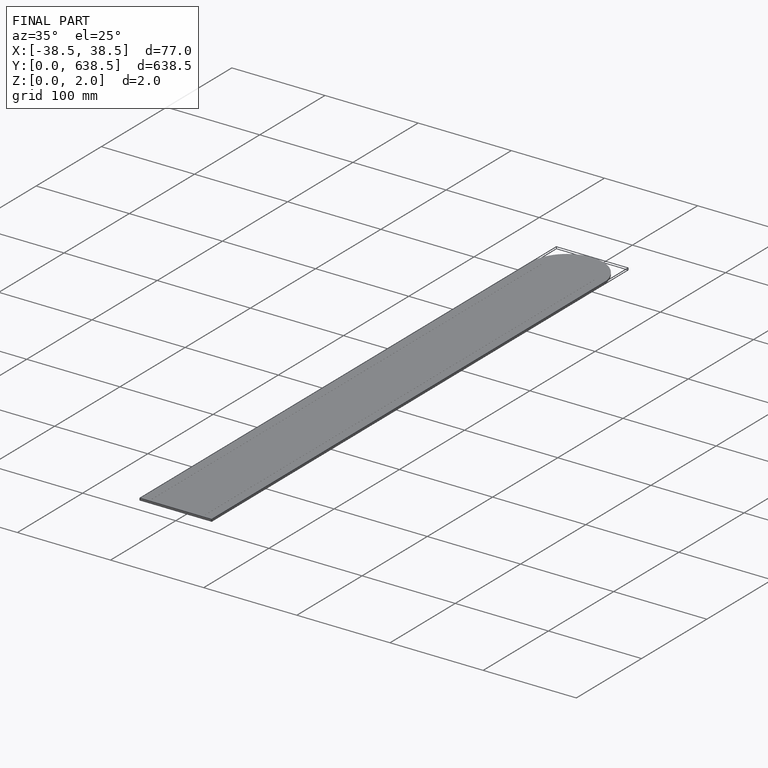
[diagram: finished part — iso view with bounding-box wireframe]
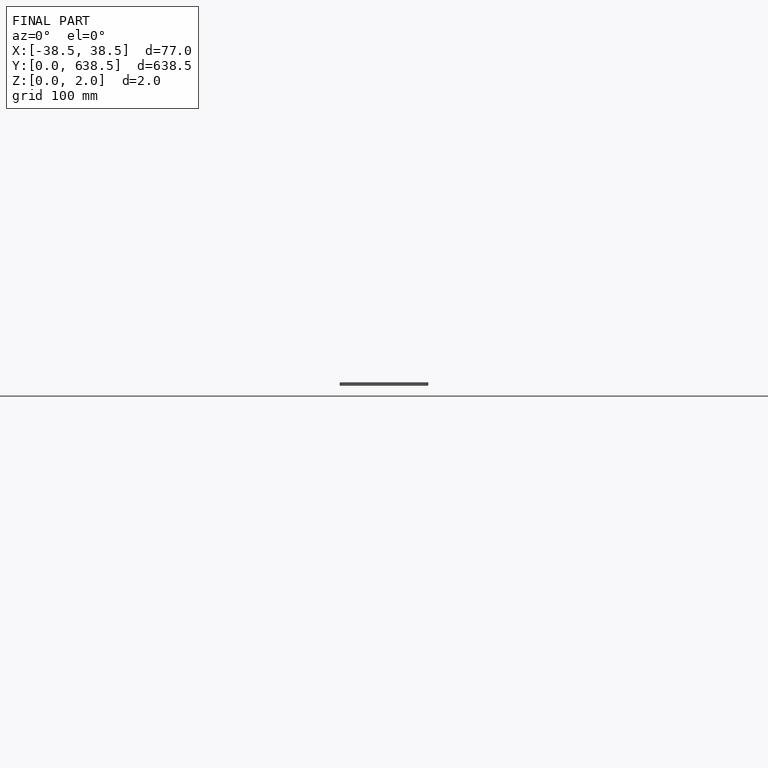
[diagram: finished part — front view with bounding-box wireframe]
